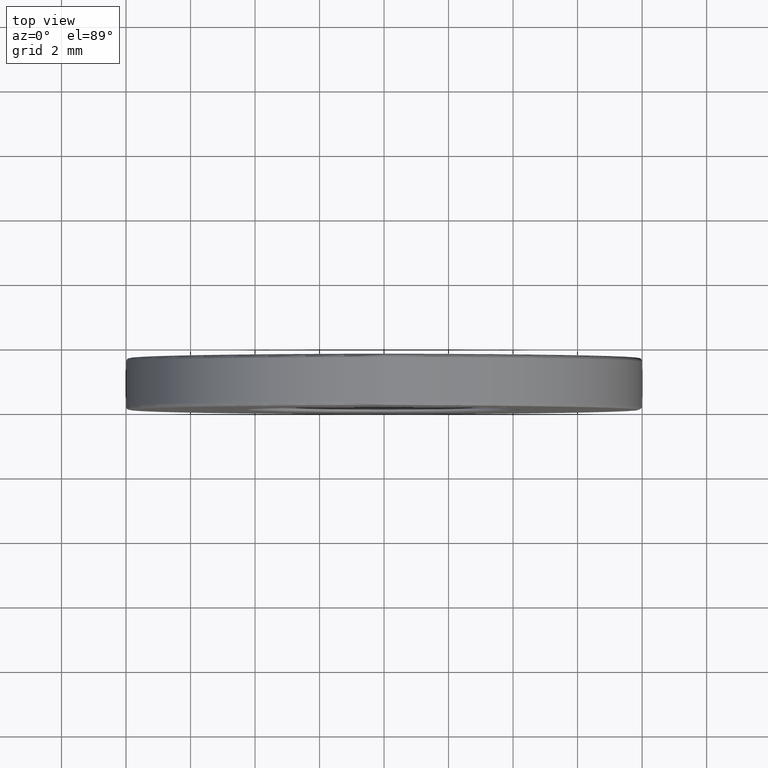
[diagram: clean part render]
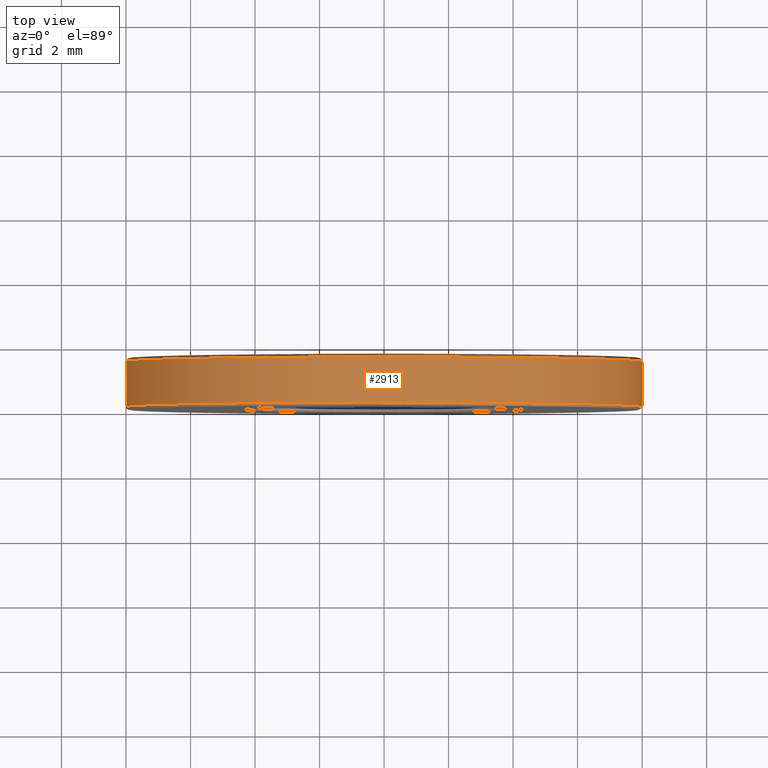
[diagram: same view with one face highlighted and labeled with its STEP entity id]
A machine part, top view. The second image highlights one B-rep face of the part: STEP entity #2913.
In plain terms, the highlighted cylindrical surface (bore or boss wall) has radius 8 mm, axis along (-0, -1, -0).
Its self-contained STEP definition (entity closure, byte-faithful):
#306 = AXIS2_PLACEMENT_3D ( 'NONE', #1691, #526, #13725 ) ;
#381 = EDGE_LOOP ( 'NONE', ( #9672 ) ) ;
#526 = DIRECTION ( 'NONE',  ( -0.0000000000000000000, -1.000000000000000000, -0.0000000000000000000 ) ) ;
#1225 = DIRECTION ( 'NONE',  ( 0.0000000000000000000, 0.0000000000000000000, -1.000000000000000000 ) ) ;
#1691 = CARTESIAN_POINT ( 'NONE',  ( 0.0000000000000000000, 1.500000000000000000, 0.0000000000000000000 ) ) ;
#2237 = AXIS2_PLACEMENT_3D ( 'NONE', #5103, #13585, #11251 ) ;
#2913 = ADVANCED_FACE ( 'NONE', ( #5946, #11838 ), #11286, .T. ) ;
#3349 = VERTEX_POINT ( 'NONE', #12357 ) ;
#3870 = AXIS2_PLACEMENT_3D ( 'NONE', #12023, #10845, #1225 ) ;
#4211 = EDGE_LOOP ( 'NONE', ( #15113 ) ) ;
#4223 = EDGE_CURVE ( 'NONE', #12049, #12049, #11250, .T. ) ;
#4599 = CIRCLE ( 'NONE', #2237, 8.000000000000000000 ) ;
#4908 = EDGE_CURVE ( 'NONE', #3349, #3349, #4599, .T. ) ;
#5103 = CARTESIAN_POINT ( 'NONE',  ( 0.0000000000000000000, 0.1000000000000000500, 0.0000000000000000000 ) ) ;
#5946 = FACE_OUTER_BOUND ( 'NONE', #4211, .T. ) ;
#9672 = ORIENTED_EDGE ( 'NONE', *, *, #4223, .T. ) ;
#9810 = CARTESIAN_POINT ( 'NONE',  ( 0.0000000000000000000, 1.500000000000000000, 8.000000000000000000 ) ) ;
#10845 = DIRECTION ( 'NONE',  ( -0.0000000000000000000, -1.000000000000000000, -0.0000000000000000000 ) ) ;
#11250 = CIRCLE ( 'NONE', #306, 8.000000000000000000 ) ;
#11251 = DIRECTION ( 'NONE',  ( 0.0000000000000000000, 0.0000000000000000000, 1.000000000000000000 ) ) ;
#11286 = CYLINDRICAL_SURFACE ( 'NONE', #3870, 8.000000000000000000 ) ;
#11838 = FACE_OUTER_BOUND ( 'NONE', #381, .T. ) ;
#12023 = CARTESIAN_POINT ( 'NONE',  ( 0.0000000000000000000, 1.600000000000000100, 0.0000000000000000000 ) ) ;
#12049 = VERTEX_POINT ( 'NONE', #9810 ) ;
#12357 = CARTESIAN_POINT ( 'NONE',  ( 0.0000000000000000000, 0.1000000000000000500, 8.000000000000000000 ) ) ;
#13585 = DIRECTION ( 'NONE',  ( 0.0000000000000000000, 1.000000000000000000, 0.0000000000000000000 ) ) ;
#13725 = DIRECTION ( 'NONE',  ( 0.0000000000000000000, 0.0000000000000000000, 1.000000000000000000 ) ) ;
#15113 = ORIENTED_EDGE ( 'NONE', *, *, #4908, .T. ) ;